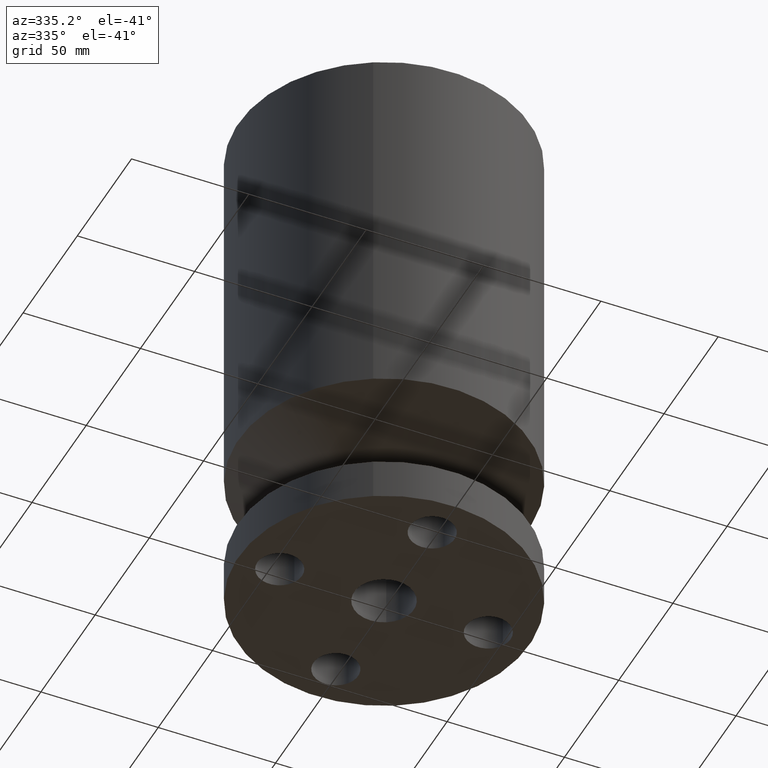
[diagram: clean part render]
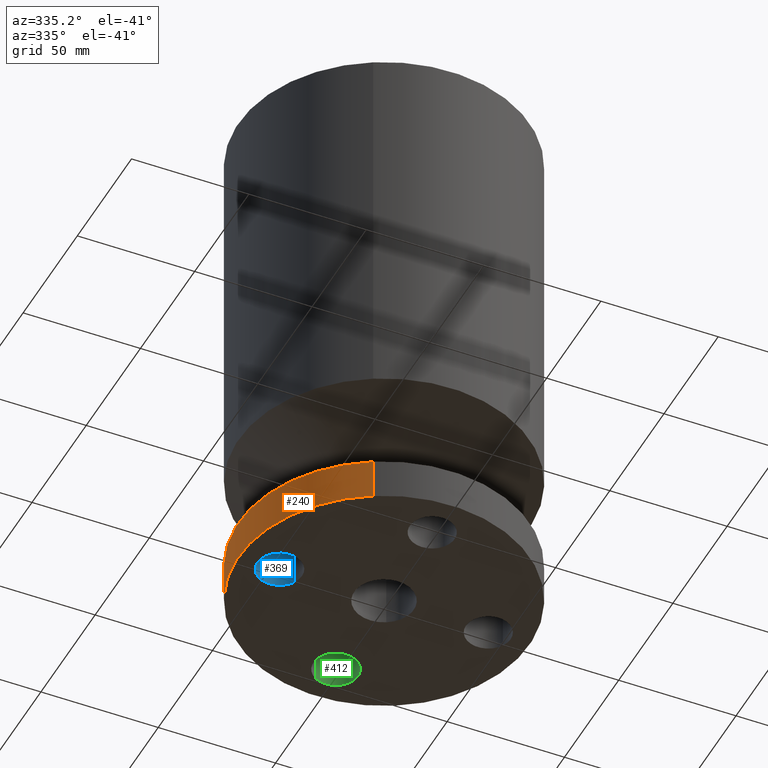
[diagram: same view with three faces highlighted in distinct colors, each labeled with its STEP entity id]
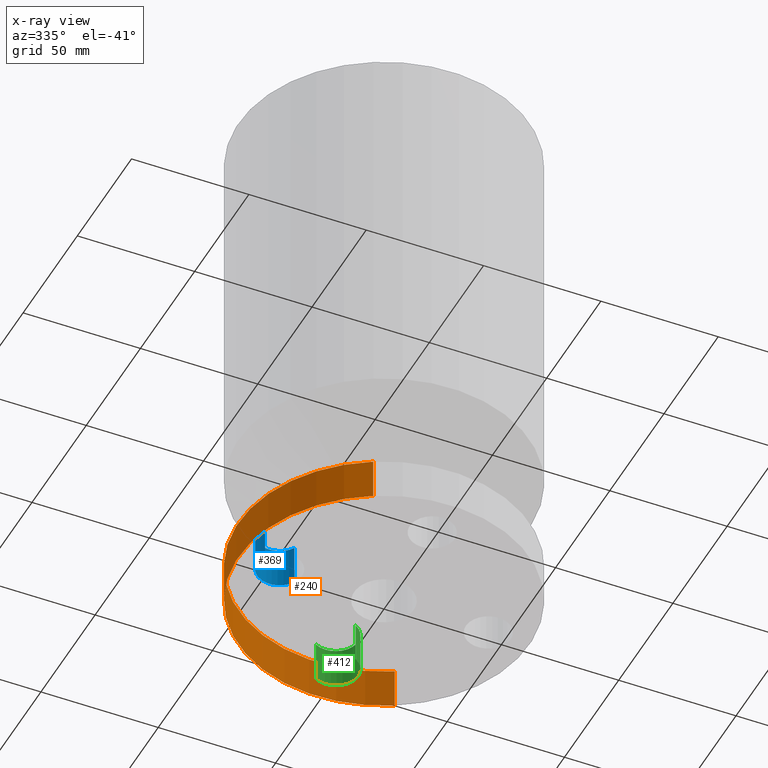
[diagram: x-ray of the same camera — body ghosted, the three highlighted faces saturated]
A machine part, auxiliary view with three faces highlighted in distinct colors.
The next image is the same camera in x-ray (body ghosted, the three faces saturated) — at least one of them is partly hidden behind the body in this view.
Their STEP definitions:

[orange] entity #240 — the highlighted cylindrical surface (partial cylindrical patch) has radius 61.976 mm, axis along (0, 0, -1).
#91=AXIS2_PLACEMENT_3D('Circle Axis2P3D',#89,#90,$) ;
#213=AXIS2_PLACEMENT_3D('Cylinder Axis2P3D',#210,#211,#212) ;
#217=AXIS2_PLACEMENT_3D('Circle Axis2P3D',#215,#216,$) ;
#84=CARTESIAN_POINT('Vertex',(1.1697983142,2.14130145102,0.690000000003)) ;
#86=CARTESIAN_POINT('Vertex',(-1.1697983142,-2.14130145102,0.690000000003)) ;
#89=CARTESIAN_POINT('Axis2P3D Location',(0.,0.,0.690000000003)) ;
#210=CARTESIAN_POINT('Axis2P3D Location',(0.,0.,4.25000000002)) ;
#215=CARTESIAN_POINT('Axis2P3D Location',(0.,0.,5.59482469102E-016)) ;
#219=CARTESIAN_POINT('Vertex',(-1.1697983142,-2.14130145102,0.)) ;
#221=CARTESIAN_POINT('Vertex',(1.1697983142,2.14130145102,0.)) ;
#224=CARTESIAN_POINT('Line Origine',(-1.1697983142,-2.14130145102,5.55837168576)) ;
#229=CARTESIAN_POINT('Line Origine',(1.1697983142,2.14130145102,5.55837168576)) ;
#90=DIRECTION('Axis2P3D Direction',(0.,0.,-0.0393700787402)) ;
#211=DIRECTION('Axis2P3D Direction',(0.,0.,-0.0393700787402)) ;
#212=DIRECTION('Axis2P3D XDirection',(-0.0188750212049,-0.0345504945626,0.)) ;
#216=DIRECTION('Axis2P3D Direction',(0.,0.,-0.0393700787402)) ;
#225=DIRECTION('Vector Direction',(0.,0.,-0.0393700787402)) ;
#230=DIRECTION('Vector Direction',(0.,0.,-0.0393700787402)) ;
#226=VECTOR('Line Direction',#225,0.0393700787402) ;
#231=VECTOR('Line Direction',#230,0.0393700787402) ;
#235=ORIENTED_EDGE('',*,*,#223,.F.) ;
#236=ORIENTED_EDGE('',*,*,#228,.T.) ;
#237=ORIENTED_EDGE('',*,*,#93,.T.) ;
#238=ORIENTED_EDGE('',*,*,#233,.F.) ;
#240=ADVANCED_FACE('PartBody',(#239),#214,.T.) ;
#92=CIRCLE('generated circle',#91,2.44000000001) ;
#218=CIRCLE('generated circle',#217,2.44000000001) ;
#214=CYLINDRICAL_SURFACE('generated cylinder',#213,2.44000000001) ;
#93=EDGE_CURVE('',#87,#85,#92,.T.) ;
#223=EDGE_CURVE('',#220,#222,#218,.T.) ;
#228=EDGE_CURVE('',#220,#87,#227,.F.) ;
#233=EDGE_CURVE('',#222,#85,#232,.F.) ;
#234=EDGE_LOOP('',(#235,#236,#237,#238)) ;
#239=FACE_OUTER_BOUND('',#234,.T.) ;
#227=LINE('Line',#224,#226) ;
#232=LINE('Line',#229,#231) ;
#85=VERTEX_POINT('',#84) ;
#87=VERTEX_POINT('',#86) ;
#220=VERTEX_POINT('',#219) ;
#222=VERTEX_POINT('',#221) ;

[blue] entity #369 — the highlighted cylindrical surface (edge-blend (fillet) strip) has radius 9.525 mm, axis along (0, 0, 1).
#154=AXIS2_PLACEMENT_3D('Circle Axis2P3D',#152,#153,$) ;
#342=AXIS2_PLACEMENT_3D('Cylinder Axis2P3D',#339,#340,#341) ;
#353=AXIS2_PLACEMENT_3D('Circle Axis2P3D',#351,#352,$) ;
#147=CARTESIAN_POINT('Vertex',(-1.4209065393,0.179784576977,0.690000000003)) ;
#149=CARTESIAN_POINT('Vertex',(-2.07909346072,-0.179784576977,0.690000000003)) ;
#152=CARTESIAN_POINT('Axis2P3D Location',(-1.75000000001,-2.79741234551E-016,0.690000000003)) ;
#339=CARTESIAN_POINT('Axis2P3D Location',(-1.75000000001,-2.14313189852E-016,0.00393700787402)) ;
#344=CARTESIAN_POINT('Line Origine',(-2.07909346072,-0.179784576977,0.345000000001)) ;
#348=CARTESIAN_POINT('Vertex',(-2.07909346072,-0.179784576977,2.2401153548E-016)) ;
#351=CARTESIAN_POINT('Axis2P3D Location',(-1.75000000001,-2.14313189852E-016,0.)) ;
#355=CARTESIAN_POINT('Vertex',(-1.4209065393,0.179784576977,2.2401153548E-016)) ;
#358=CARTESIAN_POINT('Line Origine',(-1.4209065393,0.179784576977,0.345000000001)) ;
#153=DIRECTION('Axis2P3D Direction',(0.,0.,-0.0393700787402)) ;
#340=DIRECTION('Axis2P3D Direction',(0.,0.,0.0393700787402)) ;
#341=DIRECTION('Axis2P3D XDirection',(-0.0345504945626,-0.0188750212049,0.)) ;
#345=DIRECTION('Vector Direction',(0.,0.,0.0393700787402)) ;
#352=DIRECTION('Axis2P3D Direction',(0.,0.,0.0393700787402)) ;
#359=DIRECTION('Vector Direction',(0.,0.,0.0393700787402)) ;
#346=VECTOR('Line Direction',#345,0.0393700787402) ;
#360=VECTOR('Line Direction',#359,0.0393700787402) ;
#364=ORIENTED_EDGE('',*,*,#350,.T.) ;
#365=ORIENTED_EDGE('',*,*,#357,.T.) ;
#366=ORIENTED_EDGE('',*,*,#362,.F.) ;
#367=ORIENTED_EDGE('',*,*,#156,.F.) ;
#369=ADVANCED_FACE('PartBody',(#368),#343,.F.) ;
#155=CIRCLE('generated circle',#154,0.375000000002) ;
#354=CIRCLE('generated circle',#353,0.375000000002) ;
#343=CYLINDRICAL_SURFACE('generated cylinder',#342,0.375000000002) ;
#156=EDGE_CURVE('',#150,#148,#155,.T.) ;
#350=EDGE_CURVE('',#150,#349,#347,.F.) ;
#357=EDGE_CURVE('',#349,#356,#354,.F.) ;
#362=EDGE_CURVE('',#148,#356,#361,.F.) ;
#363=EDGE_LOOP('',(#364,#365,#366,#367)) ;
#368=FACE_OUTER_BOUND('',#363,.T.) ;
#347=LINE('Line',#344,#346) ;
#361=LINE('Line',#358,#360) ;
#148=VERTEX_POINT('',#147) ;
#150=VERTEX_POINT('',#149) ;
#349=VERTEX_POINT('',#348) ;
#356=VERTEX_POINT('',#355) ;

[green] entity #412 — the highlighted cylindrical surface (edge-blend (fillet) strip) has radius 9.525 mm, axis along (0, 0, 1).
#172=AXIS2_PLACEMENT_3D('Circle Axis2P3D',#170,#171,$) ;
#385=AXIS2_PLACEMENT_3D('Cylinder Axis2P3D',#382,#383,#384) ;
#396=AXIS2_PLACEMENT_3D('Circle Axis2P3D',#394,#395,$) ;
#165=CARTESIAN_POINT('Vertex',(0.179784576977,1.4209065393,0.690000000003)) ;
#167=CARTESIAN_POINT('Vertex',(-0.179784576977,2.07909346072,0.690000000003)) ;
#170=CARTESIAN_POINT('Axis2P3D Location',(-4.19611851827E-016,1.75000000001,0.690000000003)) ;
#382=CARTESIAN_POINT('Axis2P3D Location',(-3.21469784777E-016,1.75000000001,0.00393700787402)) ;
#387=CARTESIAN_POINT('Line Origine',(-0.179784576977,2.07909346072,0.345000000001)) ;
#391=CARTESIAN_POINT('Vertex',(-0.179784576977,2.07909346072,2.2401153548E-016)) ;
#394=CARTESIAN_POINT('Axis2P3D Location',(-3.21469784777E-016,1.75000000001,0.)) ;
#398=CARTESIAN_POINT('Vertex',(0.179784576977,1.4209065393,2.2401153548E-016)) ;
#401=CARTESIAN_POINT('Line Origine',(0.179784576977,1.4209065393,0.345000000001)) ;
#171=DIRECTION('Axis2P3D Direction',(0.,0.,-0.0393700787402)) ;
#383=DIRECTION('Axis2P3D Direction',(0.,0.,0.0393700787402)) ;
#384=DIRECTION('Axis2P3D XDirection',(-0.0188750212049,0.0345504945626,0.)) ;
#388=DIRECTION('Vector Direction',(0.,0.,0.0393700787402)) ;
#395=DIRECTION('Axis2P3D Direction',(0.,0.,0.0393700787402)) ;
#402=DIRECTION('Vector Direction',(0.,0.,0.0393700787402)) ;
#389=VECTOR('Line Direction',#388,0.0393700787402) ;
#403=VECTOR('Line Direction',#402,0.0393700787402) ;
#407=ORIENTED_EDGE('',*,*,#393,.T.) ;
#408=ORIENTED_EDGE('',*,*,#400,.T.) ;
#409=ORIENTED_EDGE('',*,*,#405,.F.) ;
#410=ORIENTED_EDGE('',*,*,#174,.F.) ;
#412=ADVANCED_FACE('PartBody',(#411),#386,.F.) ;
#173=CIRCLE('generated circle',#172,0.375000000001) ;
#397=CIRCLE('generated circle',#396,0.375000000001) ;
#386=CYLINDRICAL_SURFACE('generated cylinder',#385,0.375000000001) ;
#174=EDGE_CURVE('',#168,#166,#173,.T.) ;
#393=EDGE_CURVE('',#168,#392,#390,.F.) ;
#400=EDGE_CURVE('',#392,#399,#397,.F.) ;
#405=EDGE_CURVE('',#166,#399,#404,.F.) ;
#406=EDGE_LOOP('',(#407,#408,#409,#410)) ;
#411=FACE_OUTER_BOUND('',#406,.T.) ;
#390=LINE('Line',#387,#389) ;
#404=LINE('Line',#401,#403) ;
#166=VERTEX_POINT('',#165) ;
#168=VERTEX_POINT('',#167) ;
#392=VERTEX_POINT('',#391) ;
#399=VERTEX_POINT('',#398) ;